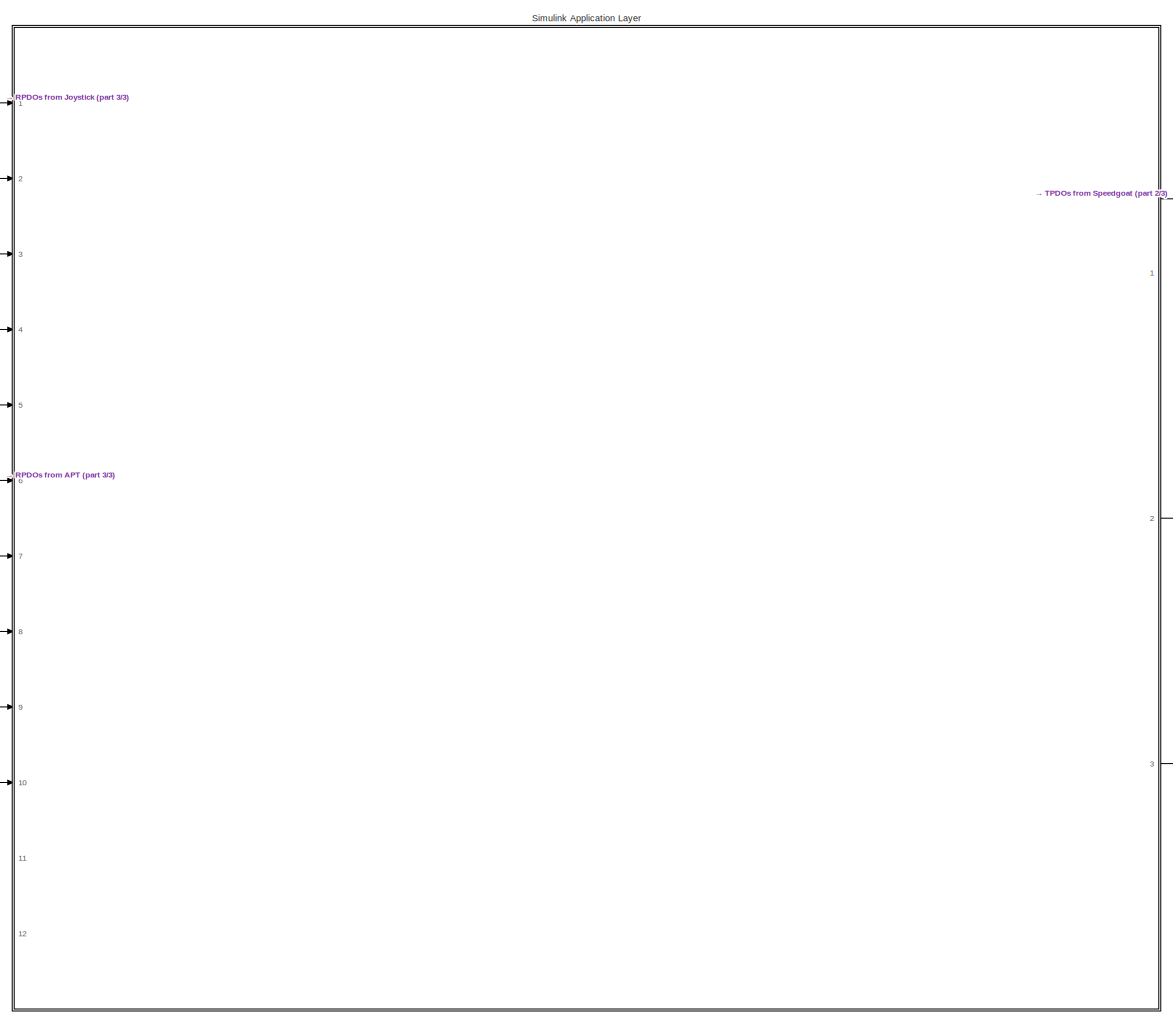
[diagram: root canvas - part 1/3, center side, full height]
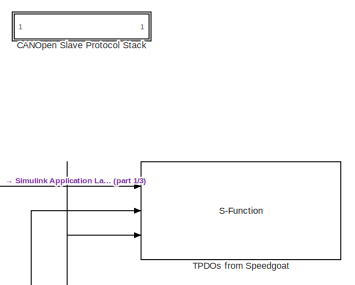
[diagram: root canvas - part 2/3, top right region]
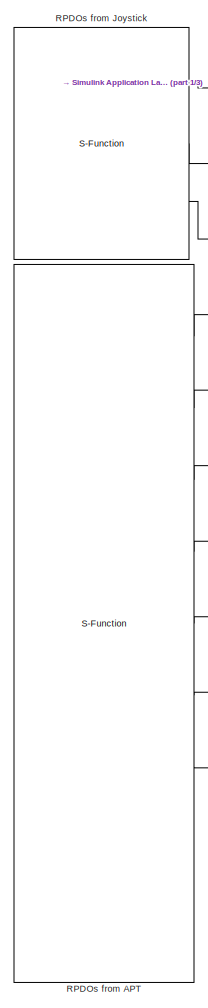
[diagram: root canvas - part 3/3, left side, full height]
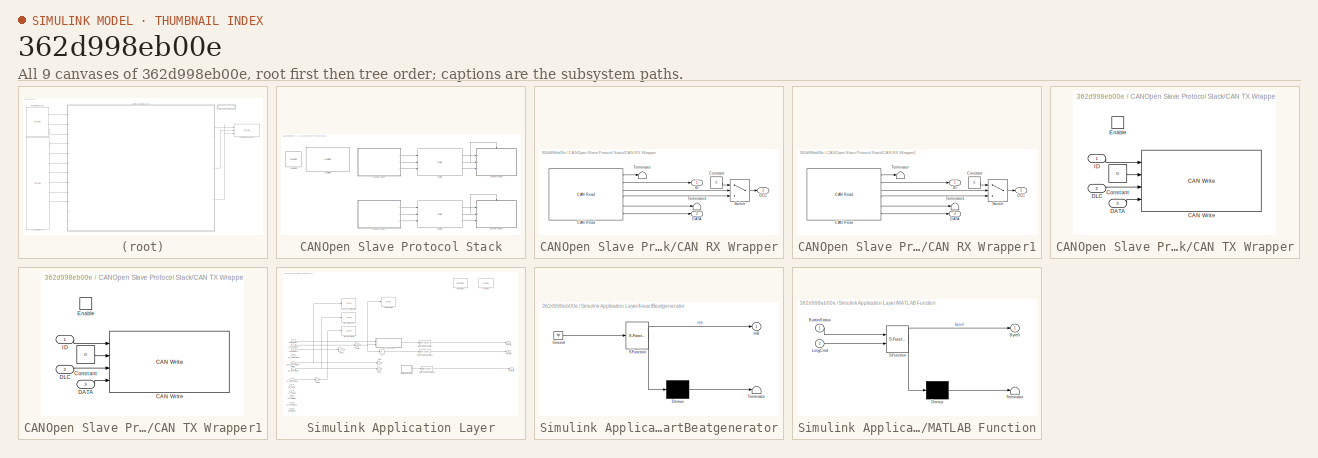
[diagram: thumbnail index - all 9 canvases of the model, root first then tree order]
MODEL slx_362d998eb00e
KIND model
CONFIG AbsTol = auto
CONFIG EnableMultiTasking = on
CONFIG FixedStep = 0.001
CONFIG MaxStep = auto
CONFIG MinStep = auto
CONFIG RelTol = 1e-3
CONFIG SampleTimeConstraint = Unconstrained
CONFIG Solver = FixedStepDiscrete
CONFIG SolverName = FixedStepDiscrete
CONFIG StartTime = 0.0
CONFIG StopTime = inf
BLOCK [SubSystem] CANOpen Slave Protocol Stack
  Ports = []
  RequestExecContextInheritance = off
BLOCK [CCaller] CANOpen Slave Protocol Stack/C Caller
  FunctionName = CANOpenSlave_ProcessStack
  PortSpecificationStruct = %)30     .    ( D   8    (     @         %    "     8    !     0         %  0 "0    $    V    07)G3F%M90  4&]R=$YA;64 4V-O<&4     26YD97@     5'EP90      4VEZ90         .    ,     8    (    !          %    "     $    $     0         0  0 <GA)1 X    P    !@    @    $          4    (     0    0    !         !  ! !R>$E$#@   #@    &    "     0         !0    @    !    !0    $         $     4   !);G!U= ...<+2730ch>
  Ports = [3, 3]
BLOCK [CCaller] CANOpen Slave Protocol Stack/C Caller1
  FunctionName = CANOpenSlave_ProcessStack
  PortSpecificationStruct = %)30     .    ( D   8    (     @         %    "     8    !     0         %  0 "0    $    V    07)G3F%M90  4&]R=$YA;64 4V-O<&4     26YD97@     5'EP90      4VEZ90         .    ,     8    (    !          %    "     $    $     0         0  0 <GA)1 X    P    !@    @    $          4    (     0    0    !         !  ! !R>$E$#@   #@    &    "     0         !0    @    !    !0    $         $     4   !);G!U= ...<+2730ch>
  Ports = [3, 3]
BLOCK [SubSystem] CANOpen Slave Protocol Stack/CAN RX Wrapper
  Ports = [0, 3]
  RequestExecContextInheritance = off
BLOCK [Reference] CANOpen Slave Protocol Stack/CAN RX Wrapper/CAN Read  REF=speedgoatlib_IO691/CAN Read
  Ports = [0, 6]
  SourceBlock = speedgoatlib_IO691/CAN Read
  SourceProductName = Simulink Real-Time: Speedgoat Library
  SourceType = read_IO691
BLOCK [Constant] CANOpen Slave Protocol Stack/CAN RX Wrapper/Constant
  Commented = on
  OutDataTypeStr = Inherit: Inherit via back propagation
  Value = 0
BLOCK [Outport] CANOpen Slave Protocol Stack/CAN RX Wrapper/DATA
  IconDisplay = Port number
  Port = 3
BLOCK [Outport] CANOpen Slave Protocol Stack/CAN RX Wrapper/DLC
  IconDisplay = Port number
  Port = 2
BLOCK [Outport] CANOpen Slave Protocol Stack/CAN RX Wrapper/ID
  IconDisplay = Port number
BLOCK [Switch] CANOpen Slave Protocol Stack/CAN RX Wrapper/Switch
  Criteria = u2 > Threshold
  InputSameDT = off
  SaturateOnIntegerOverflow = off
BLOCK [Terminator] CANOpen Slave Protocol Stack/CAN RX Wrapper/Terminator
BLOCK [Terminator] CANOpen Slave Protocol Stack/CAN RX Wrapper/Terminator1
BLOCK [SubSystem] CANOpen Slave Protocol Stack/CAN RX Wrapper1
  Ports = [0, 3]
  RequestExecContextInheritance = off
BLOCK [Reference] CANOpen Slave Protocol Stack/CAN RX Wrapper1/CAN Read  REF=speedgoatlib_IO691/CAN Read
  Ports = [0, 6]
  SourceBlock = speedgoatlib_IO691/CAN Read
  SourceProductName = Simulink Real-Time: Speedgoat Library
  SourceType = read_IO691
BLOCK [Constant] CANOpen Slave Protocol Stack/CAN RX Wrapper1/Constant
  Commented = on
  OutDataTypeStr = Inherit: Inherit via back propagation
  Value = 0
BLOCK [Outport] CANOpen Slave Protocol Stack/CAN RX Wrapper1/DATA
  IconDisplay = Port number
  Port = 3
BLOCK [Outport] CANOpen Slave Protocol Stack/CAN RX Wrapper1/DLC
  IconDisplay = Port number
  Port = 2
BLOCK [Outport] CANOpen Slave Protocol Stack/CAN RX Wrapper1/ID
  IconDisplay = Port number
BLOCK [Switch] CANOpen Slave Protocol Stack/CAN RX Wrapper1/Switch
  Criteria = u2 > Threshold
  InputSameDT = off
  SaturateOnIntegerOverflow = off
BLOCK [Terminator] CANOpen Slave Protocol Stack/CAN RX Wrapper1/Terminator
BLOCK [Terminator] CANOpen Slave Protocol Stack/CAN RX Wrapper1/Terminator1
BLOCK [Reference] CANOpen Slave Protocol Stack/CAN Setup   REF=speedgoatlib_IO691/CAN Setup 
  Ports = []
  SourceBlock = speedgoatlib_IO691/CAN Setup
  SourceProductName = Simulink Real-Time: Speedgoat Library
  SourceType = setup_IO691
BLOCK [Reference] CANOpen Slave Protocol Stack/CAN Status  REF=speedgoatlib_IO691/CAN Status
  Commented = on
  Ports = [0, 4]
  SourceBlock = speedgoatlib_IO691/CAN Status
  SourceProductName = Simulink Real-Time: Speedgoat Library
  SourceType = status_IO691
  UserDataPersistent = on
BLOCK [SubSystem] CANOpen Slave Protocol Stack/CAN TX Wrapper
  Ports = [3, 0, 1]
  RequestExecContextInheritance = off
BLOCK [Reference] CANOpen Slave Protocol Stack/CAN TX Wrapper/CAN Write  REF=speedgoatlib_IO691/CAN Write
  Ports = [4]
  SourceBlock = speedgoatlib_IO691/CAN Write
  SourceProductName = Simulink Real-Time: Speedgoat Library
  SourceType = write_IO691
BLOCK [Constant] CANOpen Slave Protocol Stack/CAN TX Wrapper/Constant
  OutDataTypeStr = Inherit: Inherit via back propagation
  Value = 0
BLOCK [Inport] CANOpen Slave Protocol Stack/CAN TX Wrapper/DATA
  IconDisplay = Port number
  Port = 3
BLOCK [Inport] CANOpen Slave Protocol Stack/CAN TX Wrapper/DLC
  IconDisplay = Port number
  Port = 2
BLOCK [EnablePort] CANOpen Slave Protocol Stack/CAN TX Wrapper/Enable
  Ports = []
BLOCK [Inport] CANOpen Slave Protocol Stack/CAN TX Wrapper/ID
  IconDisplay = Port number
BLOCK [SubSystem] CANOpen Slave Protocol Stack/CAN TX Wrapper1
  Ports = [3, 0, 1]
  RequestExecContextInheritance = off
BLOCK [Reference] CANOpen Slave Protocol Stack/CAN TX Wrapper1/CAN Write  REF=speedgoatlib_IO691/CAN Write
  Ports = [4]
  SourceBlock = speedgoatlib_IO691/CAN Write
  SourceProductName = Simulink Real-Time: Speedgoat Library
  SourceType = write_IO691
BLOCK [Constant] CANOpen Slave Protocol Stack/CAN TX Wrapper1/Constant
  OutDataTypeStr = Inherit: Inherit via back propagation
  Value = 0
BLOCK [Inport] CANOpen Slave Protocol Stack/CAN TX Wrapper1/DATA
  IconDisplay = Port number
  Port = 3
BLOCK [Inport] CANOpen Slave Protocol Stack/CAN TX Wrapper1/DLC
  IconDisplay = Port number
  Port = 2
BLOCK [EnablePort] CANOpen Slave Protocol Stack/CAN TX Wrapper1/Enable
  Ports = []
BLOCK [Inport] CANOpen Slave Protocol Stack/CAN TX Wrapper1/ID
  IconDisplay = Port number
BLOCK [S-Function] RPDOs from APT
  CopyFcn = set_param(gcbh,'LinkStatus','none')
  EnableBusSupport = off
  FunctionName = RPDOs_APT
  InitFcn = try, set_param(gcb,'FunctionName','RPDOs_APT'), end
  OpenFcn = sfunctionwizard(gcbh)
  Ports = [0, 9]
  PreSaveFcn = try, set_param(gcb,'FunctionName','RPDOs_APT'), end
  SFcnIsStateOwnerBlock = off
  SFunctionDeploymentMode = off
  SFunctionModules = RPDOs_APT_wrapper
BLOCK [S-Function] RPDOs from Joystick
  CopyFcn = set_param(gcbh,'LinkStatus','none')
  EnableBusSupport = off
  FunctionName = RPDOs_Joystick
  InitFcn = try, set_param(gcb,'FunctionName','RPDOs_Joystick'), end
  OpenFcn = sfunctionwizard(gcbh)
  Ports = [0, 3]
  PreSaveFcn = try, set_param(gcb,'FunctionName','RPDOs_Joystick'), end
  SFcnIsStateOwnerBlock = off
  SFunctionDeploymentMode = off
  SFunctionModules = RPDOs_Joystick_wrapper
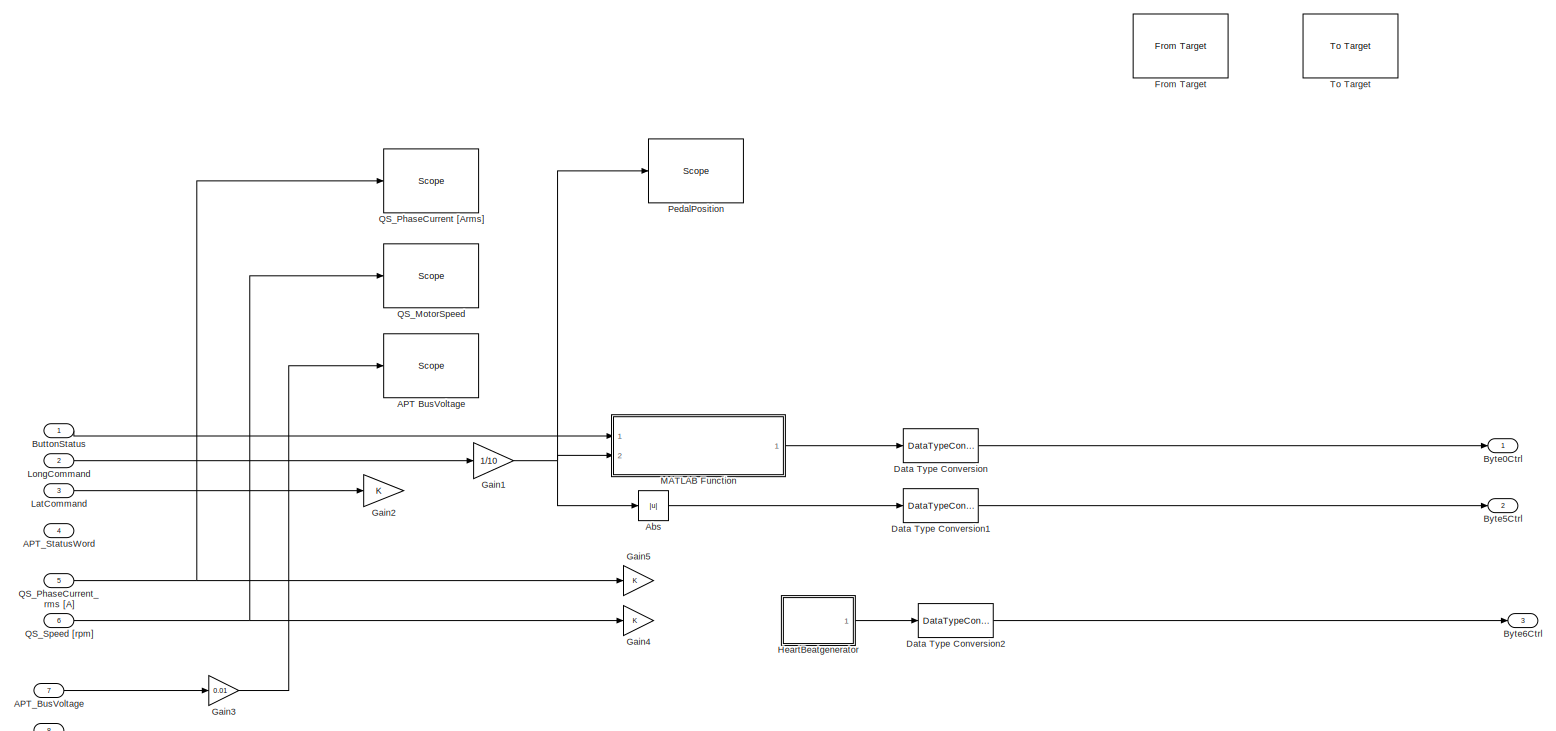
[diagram: Simulink Application Layer - part 1/2, most of the canvas]
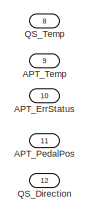
[diagram: Simulink Application Layer - part 2/2, bottom left region]
BLOCK [SubSystem] Simulink Application Layer
  Ports = [12, 3]
  RequestExecContextInheritance = off
BLOCK [Reference] Simulink Application Layer/APT BusVoltage  REF=slrtlib/Displays and
Logging/Scope 
  Ports = [1]
  SourceBlock = slrtlib/Displays and\nLogging/Scope
  SourceProductBaseCode = XP
  SourceType = xpcscopeblock
BLOCK [Inport] Simulink Application Layer/APT_BusVoltage
  IconDisplay = Port number
  Port = 7
BLOCK [Inport] Simulink Application Layer/APT_ErrStatus
  IconDisplay = Port number
  Port = 10
BLOCK [Inport] Simulink Application Layer/APT_PedalPos
  IconDisplay = Port number
  Port = 11
BLOCK [Inport] Simulink Application Layer/APT_StatusWord
  IconDisplay = Port number
  Port = 4
BLOCK [Inport] Simulink Application Layer/APT_Temp
  IconDisplay = Port number
  Port = 9
BLOCK [Abs] Simulink Application Layer/Abs
  SaturateOnIntegerOverflow = off
BLOCK [Inport] Simulink Application Layer/ButtonStatus
  IconDisplay = Port number
  OutDataTypeStr = uint8
BLOCK [Outport] Simulink Application Layer/Byte0Ctrl
  IconDisplay = Port number
  OutDataTypeStr = uint8
BLOCK [Outport] Simulink Application Layer/Byte5Ctrl
  IconDisplay = Port number
  OutDataTypeStr = uint8
  Port = 2
BLOCK [Outport] Simulink Application Layer/Byte6Ctrl
  IconDisplay = Port number
  OutDataTypeStr = uint8
  Port = 3
BLOCK [DataTypeConversion] Simulink Application Layer/Data Type Conversion
  OutDataTypeStr = uint8
  RndMeth = Floor
  SaturateOnIntegerOverflow = off
BLOCK [DataTypeConversion] Simulink Application Layer/Data Type Conversion1
  OutDataTypeStr = uint8
  RndMeth = Floor
  SaturateOnIntegerOverflow = off
BLOCK [DataTypeConversion] Simulink Application Layer/Data Type Conversion2
  OutDataTypeStr = uint8
  RndMeth = Floor
  SaturateOnIntegerOverflow = off
BLOCK [Reference] Simulink Application Layer/From Target   REF=slrtlib/Displays and
Logging/From Target 
  Commented = on
  Ports = [0, 1]
  SourceBlock = slrtlib/Displays and\nLogging/From Target
  SourceProductBaseCode = XP
  SourceProductName = Simulink Real-Time
  SourceType = xpc2dng
BLOCK [Gain] Simulink Application Layer/Gain1
  Gain = 1/10
  OutDataTypeStr = Inherit: Inherit via internal rule
  ParamDataTypeStr = Inherit: Inherit via internal rule
  SaturateOnIntegerOverflow = off
BLOCK [Gain] Simulink Application Layer/Gain2
  OutDataTypeStr = Inherit: Inherit via internal rule
  ParamDataTypeStr = Inherit: Inherit via internal rule
  SaturateOnIntegerOverflow = off
BLOCK [Gain] Simulink Application Layer/Gain3
  Gain = 0.01
  OutDataTypeStr = single
  ParamDataTypeStr = Inherit: Inherit via internal rule
  SaturateOnIntegerOverflow = off
BLOCK [Gain] Simulink Application Layer/Gain4
  OutDataTypeStr = single
  ParamDataTypeStr = Inherit: Inherit via internal rule
  SaturateOnIntegerOverflow = off
BLOCK [Gain] Simulink Application Layer/Gain5
  OutDataTypeStr = single
  ParamDataTypeStr = Inherit: Inherit via internal rule
  SaturateOnIntegerOverflow = off
BLOCK [SubSystem] Simulink Application Layer/HeartBeatgenerator
  ErrorFcn = Stateflow.Translate.translate
  PermitHierarchicalResolution = ExplicitOnly
  Ports = [0, 1]
  RequestExecContextInheritance = off
  SFBlockType = MATLAB Function
  TreatAsAtomicUnit = on
BLOCK [Demux] Simulink Application Layer/HeartBeatgenerator/ Demux 
  Outputs = 1
  Ports = [1, 1]
BLOCK [Ground] Simulink Application Layer/HeartBeatgenerator/ Ground 
BLOCK [S-Function] Simulink Application Layer/HeartBeatgenerator/ SFunction 
  EnableBusSupport = on
  FunctionName = sf_sfun
  PortCounts = [1 2]
  Ports = [1, 2]
  SFcnIsStateOwnerBlock = off
  SFunctionDeploymentMode = off
  Tag = Stateflow S-Function SpeedgoatCANOpen03 1
BLOCK [Terminator] Simulink Application Layer/HeartBeatgenerator/ Terminator 
BLOCK [Outport] Simulink Application Layer/HeartBeatgenerator/HB
  IconDisplay = Port number
BLOCK [Inport] Simulink Application Layer/LatCommand
  IconDisplay = Port number
  Port = 3
BLOCK [Inport] Simulink Application Layer/LongCommand
  IconDisplay = Port number
  Port = 2
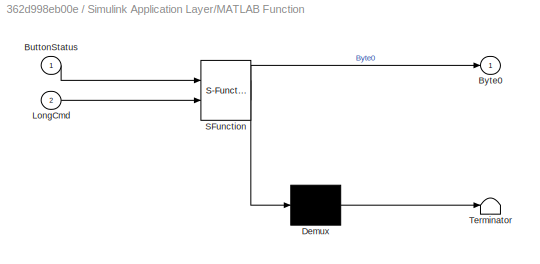
BLOCK [SubSystem] Simulink Application Layer/MATLAB Function
  ErrorFcn = Stateflow.Translate.translate
  PermitHierarchicalResolution = ExplicitOnly
  Ports = [2, 1]
  RequestExecContextInheritance = off
  SFBlockType = MATLAB Function
  TreatAsAtomicUnit = on
BLOCK [Demux] Simulink Application Layer/MATLAB Function/ Demux 
  Outputs = 1
  Ports = [1, 1]
BLOCK [S-Function] Simulink Application Layer/MATLAB Function/ SFunction 
  EnableBusSupport = on
  FunctionName = sf_sfun
  PortCounts = [2 2]
  Ports = [2, 2]
  SFcnIsStateOwnerBlock = off
  SFunctionDeploymentMode = off
  Tag = Stateflow S-Function SpeedgoatCANOpen03 2
BLOCK [Terminator] Simulink Application Layer/MATLAB Function/ Terminator 
BLOCK [Inport] Simulink Application Layer/MATLAB Function/ButtonStatus
  IconDisplay = Port number
BLOCK [Outport] Simulink Application Layer/MATLAB Function/Byte0
  IconDisplay = Port number
BLOCK [Inport] Simulink Application Layer/MATLAB Function/LongCmd
  IconDisplay = Port number
  Port = 2
BLOCK [Reference] Simulink Application Layer/PedalPosition  REF=slrtlib/Displays and
Logging/Scope 
  Ports = [1]
  SourceBlock = slrtlib/Displays and\nLogging/Scope
  SourceProductBaseCode = XP
  SourceType = xpcscopeblock
BLOCK [Inport] Simulink Application Layer/QS_Direction
  IconDisplay = Port number
  Port = 12
BLOCK [Reference] Simulink Application Layer/QS_MotorSpeed   REF=slrtlib/Displays and
Logging/Scope 
  Ports = [1]
  SourceBlock = slrtlib/Displays and\nLogging/Scope
  SourceProductBaseCode = XP
  SourceType = xpcscopeblock
BLOCK [Reference] Simulink Application Layer/QS_PhaseCurrent [Arms]  REF=slrtlib/Displays and
Logging/Scope 
  Ports = [1]
  SourceBlock = slrtlib/Displays and\nLogging/Scope
  SourceProductBaseCode = XP
  SourceType = xpcscopeblock
BLOCK [Inport] Simulink Application Layer/QS_PhaseCurrent_rms [A]
  IconDisplay = Port number
  Port = 5
BLOCK [Inport] Simulink Application Layer/QS_Speed [rpm]
  IconDisplay = Port number
  OutDataTypeStr = int16
  Port = 6
BLOCK [Inport] Simulink Application Layer/QS_Temp
  IconDisplay = Port number
  Port = 8
BLOCK [Reference] Simulink Application Layer/To Target   REF=slrtlib/Displays and
Logging/To Target 
  Commented = on
  Ports = [1]
  SourceBlock = slrtlib/Displays and\nLogging/To Target
  SourceProductBaseCode = XP
  SourceProductName = Simulink Real-Time
  SourceType = dng2xpc
BLOCK [S-Function] TPDOs from Speedgoat
  CopyFcn = set_param(gcbh,'LinkStatus','none')
  EnableBusSupport = off
  FunctionName = TPDOs_Speedgoat
  InitFcn = try, set_param(gcb,'FunctionName','TPDOs_Speedgoat'), end
  OpenFcn = sfunctionwizard(gcbh)
  Ports = [3]
  PreSaveFcn = try, set_param(gcb,'FunctionName','TPDOs_Speedgoat'), end
  SFcnIsStateOwnerBlock = off
  SFunctionDeploymentMode = off
  SFunctionModules = TPDOs_Speedgoat_wrapper
LINE CANOpen Slave Protocol Stack/C Caller1:1 -> CANOpen Slave Protocol Stack/CAN TX Wrapper1:1
NET CANOpen Slave Protocol Stack/C Caller1:2 -> CANOpen Slave Protocol Stack/CAN TX Wrapper1:2, CANOpen Slave Protocol Stack/CAN TX Wrapper1:enable
LINE CANOpen Slave Protocol Stack/C Caller1:3 -> CANOpen Slave Protocol Stack/CAN TX Wrapper1:3
LINE CANOpen Slave Protocol Stack/C Caller:1 -> CANOpen Slave Protocol Stack/CAN TX Wrapper:1
NET CANOpen Slave Protocol Stack/C Caller:2 -> CANOpen Slave Protocol Stack/CAN TX Wrapper:2, CANOpen Slave Protocol Stack/CAN TX Wrapper:enable
LINE CANOpen Slave Protocol Stack/C Caller:3 -> CANOpen Slave Protocol Stack/CAN TX Wrapper:3
LINE CANOpen Slave Protocol Stack/CAN RX Wrapper/CAN Read:1 -> CANOpen Slave Protocol Stack/CAN RX Wrapper/Terminator:1
LINE CANOpen Slave Protocol Stack/CAN RX Wrapper/CAN Read:2 -> CANOpen Slave Protocol Stack/CAN RX Wrapper/ID:1
LINE CANOpen Slave Protocol Stack/CAN RX Wrapper/CAN Read:3 -> CANOpen Slave Protocol Stack/CAN RX Wrapper/Switch:2
LINE CANOpen Slave Protocol Stack/CAN RX Wrapper/CAN Read:4 -> CANOpen Slave Protocol Stack/CAN RX Wrapper/Switch:3
LINE CANOpen Slave Protocol Stack/CAN RX Wrapper/CAN Read:5 -> CANOpen Slave Protocol Stack/CAN RX Wrapper/Terminator1:1
LINE CANOpen Slave Protocol Stack/CAN RX Wrapper/CAN Read:6 -> CANOpen Slave Protocol Stack/CAN RX Wrapper/DATA:1
LINE CANOpen Slave Protocol Stack/CAN RX Wrapper/Constant:1 -> CANOpen Slave Protocol Stack/CAN RX Wrapper/Switch:1
LINE CANOpen Slave Protocol Stack/CAN RX Wrapper/Switch:1 -> CANOpen Slave Protocol Stack/CAN RX Wrapper/DLC:1
LINE CANOpen Slave Protocol Stack/CAN RX Wrapper1/CAN Read:1 -> CANOpen Slave Protocol Stack/CAN RX Wrapper1/Terminator:1
LINE CANOpen Slave Protocol Stack/CAN RX Wrapper1/CAN Read:2 -> CANOpen Slave Protocol Stack/CAN RX Wrapper1/ID:1
LINE CANOpen Slave Protocol Stack/CAN RX Wrapper1/CAN Read:3 -> CANOpen Slave Protocol Stack/CAN RX Wrapper1/Switch:2
LINE CANOpen Slave Protocol Stack/CAN RX Wrapper1/CAN Read:4 -> CANOpen Slave Protocol Stack/CAN RX Wrapper1/Switch:3
LINE CANOpen Slave Protocol Stack/CAN RX Wrapper1/CAN Read:5 -> CANOpen Slave Protocol Stack/CAN RX Wrapper1/Terminator1:1
LINE CANOpen Slave Protocol Stack/CAN RX Wrapper1/CAN Read:6 -> CANOpen Slave Protocol Stack/CAN RX Wrapper1/DATA:1
LINE CANOpen Slave Protocol Stack/CAN RX Wrapper1/Constant:1 -> CANOpen Slave Protocol Stack/CAN RX Wrapper1/Switch:1
LINE CANOpen Slave Protocol Stack/CAN RX Wrapper1/Switch:1 -> CANOpen Slave Protocol Stack/CAN RX Wrapper1/DLC:1
LINE CANOpen Slave Protocol Stack/CAN RX Wrapper1:1 -> CANOpen Slave Protocol Stack/C Caller1:1
LINE CANOpen Slave Protocol Stack/CAN RX Wrapper1:2 -> CANOpen Slave Protocol Stack/C Caller1:2
LINE CANOpen Slave Protocol Stack/CAN RX Wrapper1:3 -> CANOpen Slave Protocol Stack/C Caller1:3
LINE CANOpen Slave Protocol Stack/CAN RX Wrapper:1 -> CANOpen Slave Protocol Stack/C Caller:1
LINE CANOpen Slave Protocol Stack/CAN RX Wrapper:2 -> CANOpen Slave Protocol Stack/C Caller:2
LINE CANOpen Slave Protocol Stack/CAN RX Wrapper:3 -> CANOpen Slave Protocol Stack/C Caller:3
LINE CANOpen Slave Protocol Stack/CAN TX Wrapper/Constant:1 -> CANOpen Slave Protocol Stack/CAN TX Wrapper/CAN Write:2
LINE CANOpen Slave Protocol Stack/CAN TX Wrapper/DATA:1 -> CANOpen Slave Protocol Stack/CAN TX Wrapper/CAN Write:4
LINE CANOpen Slave Protocol Stack/CAN TX Wrapper/DLC:1 -> CANOpen Slave Protocol Stack/CAN TX Wrapper/CAN Write:3
LINE CANOpen Slave Protocol Stack/CAN TX Wrapper/ID:1 -> CANOpen Slave Protocol Stack/CAN TX Wrapper/CAN Write:1
LINE CANOpen Slave Protocol Stack/CAN TX Wrapper1/Constant:1 -> CANOpen Slave Protocol Stack/CAN TX Wrapper1/CAN Write:2
LINE CANOpen Slave Protocol Stack/CAN TX Wrapper1/DATA:1 -> CANOpen Slave Protocol Stack/CAN TX Wrapper1/CAN Write:4
LINE CANOpen Slave Protocol Stack/CAN TX Wrapper1/DLC:1 -> CANOpen Slave Protocol Stack/CAN TX Wrapper1/CAN Write:3
LINE CANOpen Slave Protocol Stack/CAN TX Wrapper1/ID:1 -> CANOpen Slave Protocol Stack/CAN TX Wrapper1/CAN Write:1
LINE RPDOs from APT:1 -> Simulink Application Layer:4
LINE RPDOs from APT:2 -> Simulink Application Layer:5
LINE RPDOs from APT:3 -> Simulink Application Layer:6
LINE RPDOs from APT:4 -> Simulink Application Layer:7
LINE RPDOs from APT:5 -> Simulink Application Layer:8
LINE RPDOs from APT:6 -> Simulink Application Layer:9
LINE RPDOs from APT:7 -> Simulink Application Layer:10
LINE RPDOs from Joystick:1 -> Simulink Application Layer:1
LINE RPDOs from Joystick:2 -> Simulink Application Layer:2
LINE RPDOs from Joystick:3 -> Simulink Application Layer:3
LINE Simulink Application Layer/APT_BusVoltage:1 -> Simulink Application Layer/Gain3:1
LINE Simulink Application Layer/Abs:1 -> Simulink Application Layer/Data Type Conversion1:1
LINE Simulink Application Layer/ButtonStatus:1 -> Simulink Application Layer/MATLAB Function:1
LINE Simulink Application Layer/Data Type Conversion1:1 -> Simulink Application Layer/Byte5Ctrl:1
LINE Simulink Application Layer/Data Type Conversion2:1 -> Simulink Application Layer/Byte6Ctrl:1
LINE Simulink Application Layer/Data Type Conversion:1 -> Simulink Application Layer/Byte0Ctrl:1
NET Simulink Application Layer/Gain1:1 -> Simulink Application Layer/Abs:1, Simulink Application Layer/MATLAB Function:2, Simulink Application Layer/PedalPosition:1
LINE Simulink Application Layer/Gain3:1 -> Simulink Application Layer/APT BusVoltage:1
LINE Simulink Application Layer/HeartBeatgenerator:1 -> Simulink Application Layer/Data Type Conversion2:1
LINE Simulink Application Layer/LatCommand:1 -> Simulink Application Layer/Gain2:1
LINE Simulink Application Layer/LongCommand:1 -> Simulink Application Layer/Gain1:1
LINE Simulink Application Layer/MATLAB Function:1 -> Simulink Application Layer/Data Type Conversion:1
NET Simulink Application Layer/QS_PhaseCurrent_rms [A]:1 -> Simulink Application Layer/Gain5:1, Simulink Application Layer/QS_PhaseCurrent [Arms]:1
NET Simulink Application Layer/QS_Speed [rpm]:1 -> Simulink Application Layer/Gain4:1, Simulink Application Layer/QS_MotorSpeed :1
LINE Simulink Application Layer:1 -> TPDOs from Speedgoat:1
LINE Simulink Application Layer:2 -> TPDOs from Speedgoat:2
LINE Simulink Application Layer:3 -> TPDOs from Speedgoat:3
note: NET lines group one-source signal fan-out (src -> all destinations, sorted); 1:1 wires keep LINE
CHART Simulink Application Layer/HeartBeatgenerator states=1 transitions=1
  STATE_LABEL 'eML_blk_kernel()'
  STATE_LABEL 'SCRIPT:\nfunction HB = HBGenerator\npersistent tact Heartbeat\nif (isempty(Heartbeat))\n    Heartbeat = 0;\n    tact = 0;\nend\ntact=tact+1;\nif (tact>10)\n    tact=0;\n    Heartbeat=Heartbeat+1;\n    if (Heartbeat>127)\n        Heartbeat = 0;    \n    end\nend\nHB = Heartbeat;\n\n'
CHART Simulink Application Layer/MATLAB Function states=1 transitions=1
  STATE_LABEL 'eML_blk_kernel()'
  STATE_LABEL 'SCRIPT:\nfunction Byte0 = TracCtrl(ButtonStatus, LongCmd)\nDirection =0;\nif (ButtonStatus>=127)\n    if(LongCmd>0)\n        Direction = 4;\n    elseif (LongCmd<0)\n        Direction = 8;\n    end\n end\nByte0 =160+Direction;'
